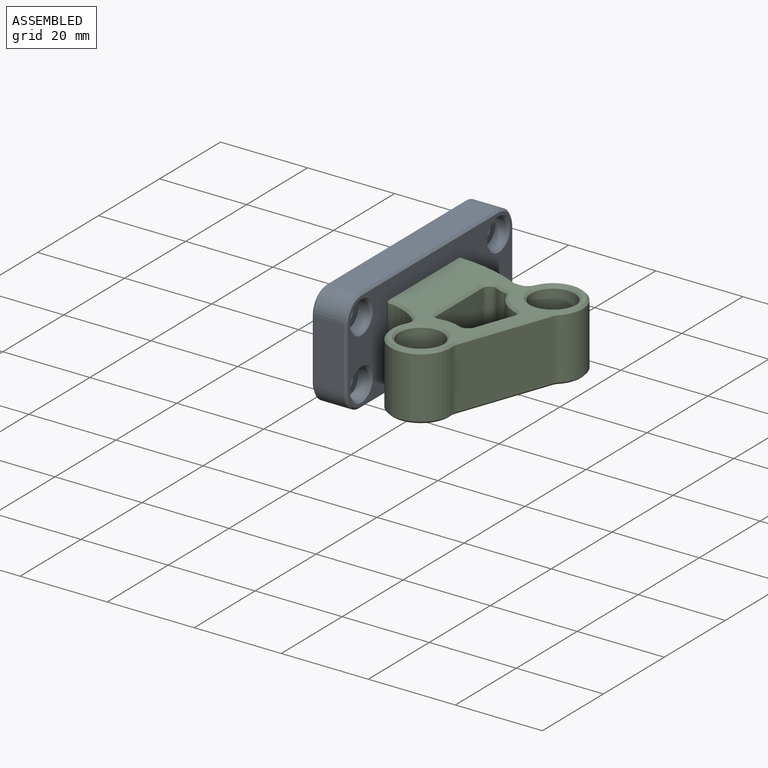
[diagram: assembled view]
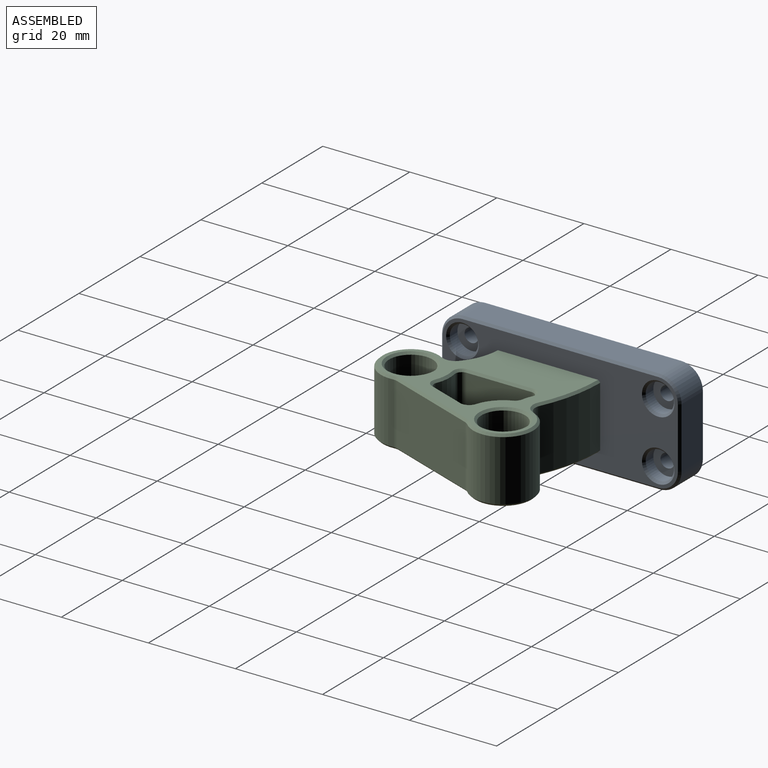
[diagram: assembled view, second angle]
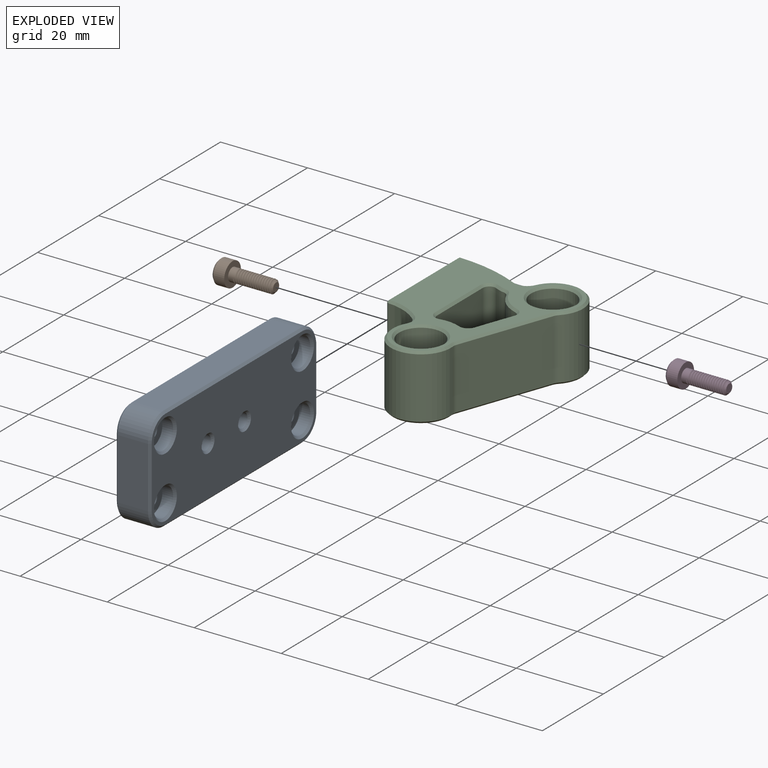
[diagram: exploded view]
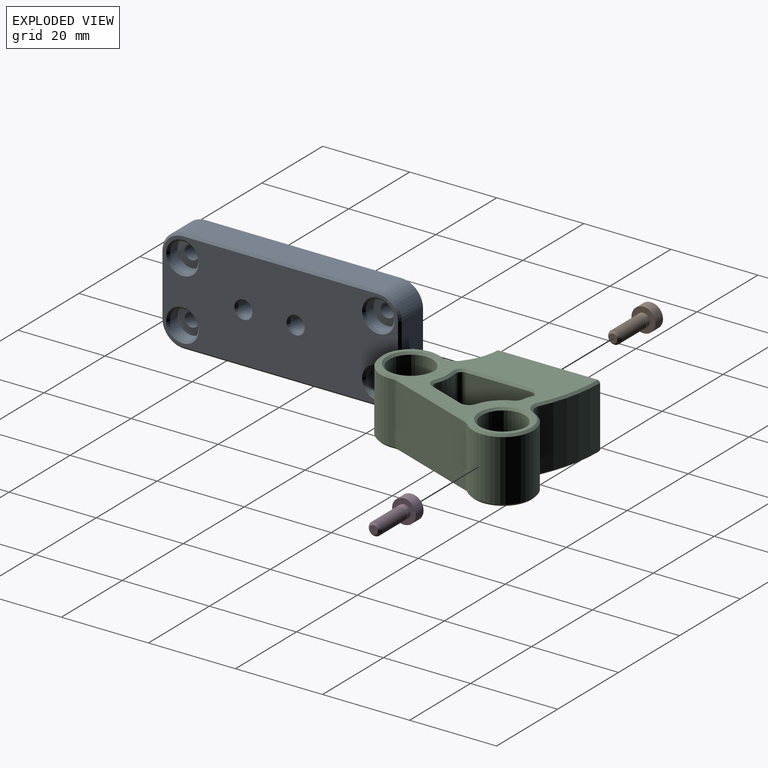
[diagram: exploded view, second angle]
ASSEMBLY  parts=4 mates=4
PART A: 56 faces, bbox 8x55x24 mm
  f0: plane 45x7mm, normal (0,0,1), area 315mm2, adj f24,f27,f32,f46
  f1: plane 14x7mm, normal (0,1,0), area 98mm2, adj f24,f25,f28,f42
  f2: plane 45x7mm, normal (0,0,-1), area 315mm2, adj f25,f26,f31,f45
  f3: plane 14x7mm, normal (0,-1,0), area 98mm2, adj f26,f27,f35,f49
  f4: plane 54x23mm, normal (-1,0,0), area 1080.8mm2, adj f42,f43,f44,f45,f46,f47,f48,f49
  f5: plane 54x23mm, normal (1,0,0), area 1020.2mm2, adj f28,f29,f30,f31,f32,f33,f34,f35
  f6: cylinder r=1.6mm len=4.5mm, axis (-1,0,0), area 45.2mm2, adj f7,f40
  f7: plane 6.5x6.5mm, normal (-1,0,0), area 25.1mm2, adj f6,f8
  f8: cylinder r=3.25mm len=6.5mm, axis (-1,0,0), area 51.1mm2, adj f7,f54
  f9: cylinder r=1.6mm len=4.5mm, axis (-1,0,0), area 45.2mm2, adj f10,f41
  f10: plane 6.5x6.5mm, normal (-1,0,0), area 25.1mm2, adj f9,f11
  f11: cylinder r=3.25mm len=6.5mm, axis (-1,0,0), area 51.1mm2, adj f10,f55
  f12: cylinder r=1.6mm len=4.5mm, axis (1,0,0), area 45.2mm2, adj f13,f53
  f13: plane 6.5x6.5mm, normal (1,0,0), area 25.1mm2, adj f12,f14
  f14: cylinder r=3.25mm len=6.5mm, axis (1,0,0), area 51.1mm2, adj f13,f39
  f15: cylinder r=1.6mm len=4.5mm, axis (1,0,0), area 45.2mm2, adj f16,f52
  f16: plane 6.5x6.5mm, normal (1,0,0), area 25.1mm2, adj f15,f17
  f17: cylinder r=3.25mm len=6.5mm, axis (1,0,0), area 51.1mm2, adj f16,f38
  f18: cylinder r=1.6mm len=4.5mm, axis (1,0,0), area 45.2mm2, adj f19,f51
  f19: plane 6.5x6.5mm, normal (1,0,0), area 25.1mm2, adj f18,f20
  f20: cylinder r=3.25mm len=6.5mm, axis (1,0,0), area 51.1mm2, adj f19,f37
  f21: cylinder r=1.6mm len=4.5mm, axis (1,0,0), area 45.2mm2, adj f22,f50
  f22: plane 6.5x6.5mm, normal (1,0,0), area 25.1mm2, adj f21,f23
  f23: cylinder r=3.25mm len=6.5mm, axis (1,0,0), area 51.1mm2, adj f22,f36
  f24: cylinder r=5mm len=7mm, axis (-1,0,0), area 55mm2, adj f0,f1,f30,f44
  f25: cylinder r=5mm len=7mm, axis (-1,0,0), area 55mm2, adj f1,f2,f29,f43
  f26: cylinder r=5mm len=7mm, axis (-1,0,0), area 55mm2, adj f2,f3,f33,f47
  f27: cylinder r=5mm len=7mm, axis (-1,0,0), area 55mm2, adj f0,f3,f34,f48
  f28: plane 14x0.5mm, normal (0.71,0.71,0), area 9.9mm2, adj f1,f5,f29,f30
  f29: cone r=4.5mm half-angle=45deg, axis (-1,0,0), area 5.3mm2, adj f5,f25,f28,f31
  f30: cone r=4.5mm half-angle=45deg, axis (-1,0,0), area 5.3mm2, adj f5,f24,f28,f32
  f31: plane 45x0.5mm, normal (0.71,0,-0.71), area 31.8mm2, adj f2,f5,f29,f33
  f32: plane 45x0.5mm, normal (0.71,0,0.71), area 31.8mm2, adj f0,f5,f30,f34
  f33: cone r=4.5mm half-angle=45deg, axis (-1,0,0), area 5.3mm2, adj f5,f26,f31,f35
  f34: cone r=4.5mm half-angle=45deg, axis (-1,0,0), area 5.3mm2, adj f5,f27,f32,f35
  f35: plane 14x0.5mm, normal (0.71,-0.71,0), area 9.9mm2, adj f3,f5,f33,f34
  f36: cone r=3.25mm half-angle=45deg, axis (1,0,0), area 15.6mm2, adj f5,f23
  f37: cone r=3.25mm half-angle=45deg, axis (1,0,0), area 15.6mm2, adj f5,f20
  f38: cone r=3.25mm half-angle=45deg, axis (1,0,0), area 15.6mm2, adj f5,f17
  f39: cone r=3.25mm half-angle=45deg, axis (1,0,0), area 15.6mm2, adj f5,f14
  f40: cone r=1.6mm half-angle=45deg, axis (1,0,0), area 8.2mm2, adj f5,f6
  f41: cone r=1.6mm half-angle=45deg, axis (1,0,0), area 8.2mm2, adj f5,f9
  f42: plane 14x0.5mm, normal (-0.71,0.71,0), area 9.9mm2, adj f1,f4,f43,f44
  f43: cone r=4.5mm half-angle=45deg, axis (1,0,0), area 5.3mm2, adj f4,f25,f42,f45
  f44: cone r=4.5mm half-angle=45deg, axis (1,0,0), area 5.3mm2, adj f4,f24,f42,f46
  f45: plane 45x0.5mm, normal (-0.71,0,-0.71), area 31.8mm2, adj f2,f4,f43,f47
  f46: plane 45x0.5mm, normal (-0.71,0,0.71), area 31.8mm2, adj f0,f4,f44,f48
  f47: cone r=4.5mm half-angle=45deg, axis (1,0,0), area 5.3mm2, adj f4,f26,f45,f49
  f48: cone r=4.5mm half-angle=45deg, axis (1,0,0), area 5.3mm2, adj f4,f27,f46,f49
  f49: plane 14x0.5mm, normal (-0.71,-0.71,0), area 9.9mm2, adj f3,f4,f47,f48
  f50: cone r=2.1mm half-angle=45deg, axis (-1,0,0), area 8.2mm2, adj f4,f21
  f51: cone r=2.1mm half-angle=45deg, axis (-1,0,0), area 8.2mm2, adj f4,f18
  f52: cone r=2.1mm half-angle=45deg, axis (-1,0,0), area 8.2mm2, adj f4,f15
  f53: cone r=2.1mm half-angle=45deg, axis (-1,0,0), area 8.2mm2, adj f4,f12
  f54: cone r=3.25mm half-angle=45deg, axis (-1,0,0), area 15.6mm2, adj f4,f8
  f55: cone r=3.25mm half-angle=45deg, axis (-1,0,0), area 15.6mm2, adj f4,f11
PART B: 33 faces, bbox 5.5x5.5x13.1 mm
  f0: cylinder r=2.75mm len=5.5mm, axis (0,0,-1), area 43.2mm2, adj f1,f32
  f1: plane 5.5x5.5mm, normal (0,0,1), area 16.7mm2, adj f0,f3
  f2: plane 4.5x4.5mm, normal (0,0,-1), area 10.5mm2, adj f25,f26,f27,f28,f29,f30,f32
  f3: cylinder r=1.5mm len=3mm, axis (0,0,-1), area 13.2mm2, adj f1,f17,f22,f23,f24
  f4: cylinder r=1.5mm len=3mm, axis (0,0,-1), area 1.9mm2, adj f5,f18,f23,f24
  f5: cylinder r=1.5mm len=3mm, axis (0,0,-1), area 1.9mm2, adj f4,f6,f23,f24
  f6: cylinder r=1.5mm len=3mm, axis (0,0,-1), area 1.9mm2, adj f5,f7,f23,f24
  f7: cylinder r=1.5mm len=3mm, axis (0,0,-1), area 1.9mm2, adj f6,f8,f23,f24
  f8: cylinder r=1.5mm len=3mm, axis (0,0,-1), area 1.9mm2, adj f7,f9,f23,f24
  f9: cylinder r=1.5mm len=3mm, axis (0,0,-1), area 1.9mm2, adj f8,f10,f23,f24
  f10: cylinder r=1.5mm len=3mm, axis (0,0,-1), area 1.9mm2, adj f9,f11,f23,f24
  f11: cylinder r=1.5mm len=3mm, axis (0,0,-1), area 1.9mm2, adj f10,f12,f23,f24
  f12: cylinder r=1.5mm len=3mm, axis (0,0,-1), area 1.9mm2, adj f11,f13,f23,f24
  f13: cylinder r=1.5mm len=3mm, axis (0,0,-1), area 1.9mm2, adj f12,f14,f23,f24
  f14: cylinder r=1.5mm len=3mm, axis (0,0,-1), area 1.9mm2, adj f13,f15,f23,f24
  f15: cylinder r=1.5mm len=3mm, axis (0,0,-1), area 1.9mm2, adj f14,f16,f23,f24
  f16: cylinder r=1.5mm len=3mm, axis (0,0,-1), area 1.9mm2, adj f15,f17,f23,f24
  f17: cylinder r=1.5mm len=3mm, axis (0,0,-1), area 1.9mm2, adj f3,f16,f23,f24
  f18: cylinder r=1.5mm len=2.59mm, axis (0,0,-1), area 0.3mm2, adj f4,f20,f21,f23
  f19: plane 2x2mm, normal (0,0,1), area 3.1mm2, adj f20
  f20: cone r=1mm half-angle=45deg, axis (0,0,-1), area 3.9mm2, adj f18,f19,f21,f23
  f21: cone r=1mm half-angle=45deg, axis (0,0,-1), area 0.5mm2, adj f18,f20,f24
  f22: plane 0.36x0.31mm, normal (-1,0,0), area 0.1mm2, adj f3,f23,f24
  f23: bspline ~8.79x3.46mm, area 44.9mm2, adj f3,f4,f5,f6,f7,f8,f9,f10
  f24: bspline ~8.79x3.46mm, area 46.1mm2, adj f3,f4,f5,f6,f7,f8,f9,f10
  f25: plane 2.5x1.25mm, normal (-0.5,0.87,0), area 3.6mm2, adj f2,f26,f30,f31
  f26: plane 2.5x1.25mm, normal (0.5,0.87,0), area 3.6mm2, adj f2,f25,f27,f31
  f27: plane 2.5x1.44mm, normal (1,0,0), area 3.6mm2, adj f2,f26,f28,f31
  f28: plane 2.5x1.25mm, normal (0.5,-0.87,0), area 3.6mm2, adj f2,f27,f29,f31
  f29: plane 2.5x1.25mm, normal (-0.5,-0.87,0), area 3.6mm2, adj f2,f28,f30,f31
  f30: plane 2.5x1.44mm, normal (-1,0,0), area 3.6mm2, adj f2,f25,f29,f31
  f31: plane 2.89x2.5mm, normal (0,0,-1), area 5.4mm2, adj f25,f26,f27,f28,f29,f30
  f32: cone r=2.75mm half-angle=45deg, axis (0,0,1), area 11.1mm2, adj f0,f2
PART C: 89 faces, bbox 32x42.3x15 mm
  f0: plane 41.3x31.01mm, normal (0,0,1), area 450.2mm2, adj f37,f39,f40,f43,f44,f47,f48,f52
  f1: plane 41.3x31.01mm, normal (0,0,-1), area 450.2mm2, adj f38,f41,f42,f45,f46,f50,f51,f55
  f2: cylinder r=2.5mm len=14mm, axis (0,0,-1), area 55.5mm2, adj f3,f9,f52,f55
  f3: cylinder r=36.56mm len=14.97mm, axis (0,0,-1), area 216.7mm2, adj f2,f56,f59,f62
  f4: plane 23.01x14mm, normal (-1,0,0), area 312.3mm2, adj f13,f15,f49,f57,f58,f62
  f5: cylinder r=12.56mm len=14mm, axis (0,0,-1), area 117.8mm2, adj f6,f48,f49,f50
  f6: cylinder r=2.5mm len=14mm, axis (0,0,-1), area 48.1mm2, adj f5,f7,f44,f45
  f7: cylinder r=6.9mm len=14mm, axis (0,0,-1), area 361.8mm2, adj f6,f10,f40,f41
  f8: plane 20.96x14mm, normal (0.94,-0.34,0), area 312.2mm2, adj f10,f11,f39,f42
  f9: cylinder r=6.9mm len=14mm, axis (0,0,-1), area 339.1mm2, adj f2,f11,f47,f51
  f10: cylinder r=2.5mm len=14mm, axis (0,0,-1), area 15.4mm2, adj f7,f8,f37,f38
  f11: cylinder r=2.5mm len=14mm, axis (0,0,-1), area 15.4mm2, adj f8,f9,f43,f46
  f12: cone r=0mm half-angle=59deg, axis (-1,0,0), area 5.7mm2, adj f13
  f13: cylinder r=1.25mm len=6.5mm, axis (-1,0,0), area 51.1mm2, adj f4,f12
  f14: cone r=0mm half-angle=59deg, axis (-1,0,0), area 5.7mm2, adj f15
  f15: cylinder r=1.25mm len=6.5mm, axis (-1,0,0), area 51.1mm2, adj f4,f14
  f16: cylinder r=4.05mm len=8.1mm, axis (0,0,1), area 127.2mm2, adj f17,f19
  f17: plane 10x10mm, normal (0,0,1), area 27mm2, adj f16,f18
  f18: cylinder r=5mm len=10mm, axis (0,0,1), area 141.4mm2, adj f17,f88
  f19: plane 10x10mm, normal (0,0,-1), area 27mm2, adj f16,f20
  f20: cylinder r=5mm len=10mm, axis (0,0,-1), area 141.4mm2, adj f19,f75
  f21: cylinder r=4.05mm len=8.1mm, axis (0,0,1), area 127.2mm2, adj f22,f24
  f22: plane 10x10mm, normal (0,0,1), area 27mm2, adj f21,f23
  f23: cylinder r=5mm len=10mm, axis (0,0,1), area 141.4mm2, adj f22,f87
  f24: plane 10x10mm, normal (0,0,-1), area 27mm2, adj f21,f25
  f25: cylinder r=5mm len=10mm, axis (0,0,-1), area 141.4mm2, adj f24,f74
  f26: cylinder r=32.56mm len=14mm, axis (0,0,1), area 6.5mm2, adj f31,f32,f71,f84
  f27: plane 14.98x14mm, normal (1,0,0), area 209.7mm2, adj f32,f33,f67,f80
  f28: cylinder r=9mm len=14mm, axis (0,0,1), area 74mm2, adj f33,f34,f63,f76
  f29: plane 14x8.79mm, normal (-0.94,0.34,0), area 130.9mm2, adj f34,f35,f66,f79
  f30: cylinder r=9mm len=14mm, axis (0,0,1), area 109.7mm2, adj f35,f36,f70,f83
  f31: cylinder r=6.5mm len=14mm, axis (0,0,1), area 27.2mm2, adj f26,f36,f73,f86
  f32: cylinder r=1.5mm len=14mm, axis (0,0,1), area 41.9mm2, adj f26,f27,f69,f82
  f33: cylinder r=1.5mm len=14mm, axis (0,0,1), area 37mm2, adj f27,f28,f65,f78
  f34: cylinder r=1.5mm len=14mm, axis (0,0,1), area 34mm2, adj f28,f29,f64,f77
  f35: cylinder r=1.5mm len=14mm, axis (0,0,1), area 34mm2, adj f29,f30,f68,f81
  f36: cylinder r=1.5mm len=14mm, axis (0,0,-1), area 21.7mm2, adj f30,f31,f72,f85
  f37: cone r=3mm half-angle=45deg, axis (0,0,1), area 0.9mm2, adj f0,f10,f39,f40
  f38: cone r=3mm half-angle=45deg, axis (0,0,-1), area 0.9mm2, adj f1,f10,f41,f42
  f39: plane 21.13x8.1mm, normal (0.66,-0.24,0.71), area 15.8mm2, adj f0,f8,f37,f43
  f40: cone r=6.4mm half-angle=45deg, axis (0,0,-1), area 17.6mm2, adj f0,f7,f37,f44
  f41: cone r=6.9mm half-angle=45deg, axis (0,0,1), area 17.6mm2, adj f1,f7,f38,f45
  f42: plane 21.13x8.1mm, normal (0.66,-0.24,-0.71), area 15.8mm2, adj f1,f8,f38,f46
  f43: cone r=3mm half-angle=45deg, axis (0,0,1), area 0.9mm2, adj f0,f11,f39,f47
  f44: cone r=2.5mm half-angle=45deg, axis (0,0,1), area 2.7mm2, adj f0,f6,f40,f48
  f45: cone r=3mm half-angle=45deg, axis (0,0,-1), area 2.7mm2, adj f1,f6,f41,f50
  f46: cone r=3mm half-angle=45deg, axis (0,0,-1), area 0.9mm2, adj f1,f11,f42,f51
  f47: cone r=6.4mm half-angle=45deg, axis (0,0,-1), area 16.5mm2, adj f0,f9,f43,f52
  f48: cone r=13.06mm half-angle=45deg, axis (0,0,1), area 6.1mm2, adj f0,f5,f44,f53
  f49: plane 14x0.5mm, normal (-0.72,-0.69,0), area 9.7mm2, adj f4,f5,f53,f54
  f50: cone r=12.56mm half-angle=45deg, axis (0,0,-1), area 6.1mm2, adj f1,f5,f45,f54
  f51: cone r=6.9mm half-angle=45deg, axis (0,0,1), area 16.5mm2, adj f1,f9,f46,f55
  f52: cone r=2.5mm half-angle=45deg, axis (0,0,1), area 3.1mm2, adj f0,f2,f47,f56
  f53: plane 0.5x0.5mm, normal (-0.58,-0.56,0.58), area 0.2mm2, adj f48,f49,f57
  f54: plane 0.5x0.5mm, normal (-0.58,-0.56,-0.58), area 0.2mm2, adj f49,f50,f58
  f55: cone r=3mm half-angle=45deg, axis (0,0,-1), area 3.1mm2, adj f1,f2,f51,f59
  f56: cone r=36.56mm half-angle=45deg, axis (0,0,-1), area 10.9mm2, adj f0,f3,f52,f60
  f57: plane 23.01x0.5mm, normal (-0.71,0,0.71), area 16.3mm2, adj f0,f4,f53,f60
  f58: plane 23.01x0.5mm, normal (-0.71,0,-0.71), area 16.3mm2, adj f1,f4,f54,f61
  f59: cone r=36.06mm half-angle=45deg, axis (0,0,1), area 10.9mm2, adj f1,f3,f55,f61
  f60: plane 0.51x0.5mm, normal (-0.57,0.58,0.57), area 0.2mm2, adj f56,f57,f62
  f61: plane 0.51x0.5mm, normal (-0.57,0.58,-0.57), area 0.2mm2, adj f58,f59,f62
  f62: plane 14x0.51mm, normal (-0.7,0.71,0), area 10mm2, adj f3,f4,f60,f61
  f63: cone r=9mm half-angle=45deg, axis (0,0,1), area 3.6mm2, adj f1,f28,f64,f65
  f64: cone r=2mm half-angle=45deg, axis (0,0,-1), area 2mm2, adj f1,f34,f63,f66
  f65: cone r=2mm half-angle=45deg, axis (0,0,-1), area 2.2mm2, adj f1,f33,f63,f67
  f66: plane 8.96x3.67mm, normal (-0.66,0.24,-0.71), area 6.6mm2, adj f1,f29,f64,f68
  f67: plane 14.98x0.5mm, normal (0.71,0,-0.71), area 10.6mm2, adj f1,f27,f65,f69
  f68: cone r=2mm half-angle=45deg, axis (0,0,-1), area 2mm2, adj f1,f35,f66,f70
  f69: cone r=2mm half-angle=45deg, axis (0,0,-1), area 2.5mm2, adj f1,f32,f67,f71
  f70: cone r=9mm half-angle=45deg, axis (0,0,1), area 5.4mm2, adj f1,f30,f68,f72
  f71: cone r=32.56mm half-angle=45deg, axis (0,0,-1), area 0.3mm2, adj f1,f26,f69,f73
  f72: cone r=2mm half-angle=45deg, axis (0,0,-1), area 1.3mm2, adj f1,f36,f70,f73
  f73: cone r=6.5mm half-angle=45deg, axis (0,0,1), area 1.3mm2, adj f1,f31,f71,f72
  f74: cone r=5mm half-angle=45deg, axis (0,0,-1), area 23.3mm2, adj f1,f25
  f75: cone r=5mm half-angle=45deg, axis (0,0,-1), area 23.3mm2, adj f1,f20
  f76: cone r=8.5mm half-angle=45deg, axis (0,0,-1), area 3.6mm2, adj f0,f28,f77,f78
  f77: cone r=2mm half-angle=45deg, axis (0,0,1), area 2mm2, adj f0,f34,f76,f79
  f78: cone r=2mm half-angle=45deg, axis (0,0,1), area 2.2mm2, adj f0,f33,f76,f80
  f79: plane 8.96x3.67mm, normal (-0.66,0.24,0.71), area 6.6mm2, adj f0,f29,f77,f81
  f80: plane 14.98x0.5mm, normal (0.71,0,0.71), area 10.6mm2, adj f0,f27,f78,f82
  f81: cone r=2mm half-angle=45deg, axis (0,0,1), area 2mm2, adj f0,f35,f79,f83
  f82: cone r=2mm half-angle=45deg, axis (0,0,1), area 2.5mm2, adj f0,f32,f80,f84
  f83: cone r=8.5mm half-angle=45deg, axis (0,0,-1), area 5.4mm2, adj f0,f30,f81,f85
  f84: cone r=33.06mm half-angle=45deg, axis (0,0,1), area 0.3mm2, adj f0,f26,f82,f86
  f85: cone r=2mm half-angle=45deg, axis (0,0,1), area 1.3mm2, adj f0,f36,f83,f86
  f86: cone r=6mm half-angle=45deg, axis (0,0,-1), area 1.3mm2, adj f0,f31,f84,f85
  f87: cone r=5mm half-angle=45deg, axis (0,0,1), area 23.3mm2, adj f0,f23
  f88: cone r=5mm half-angle=45deg, axis (0,0,1), area 23.3mm2, adj f0,f18
PART D: same geometry as B
PLACE A t=(0.16,-8.17,3.58)mm
PLACE B rot(axis=(0.71,0,0.71),180deg) t=(23.21,129.98,3.58)mm
PLACE C rot(axis=(0,0,1),0deg) t=(0.16,-8.17,3.58)mm
PLACE D rot(axis=(0.71,0,0.71),180deg) t=(23.21,141.98,3.58)mm
MATE fastened C.f12 <-> A.f6  axis (-1,0,0) through (31.21,141.98,3.58)mm
MATE fastened C.f14 <-> A.f9  axis (-1,0,0) through (31.21,129.98,3.58)mm
MATE fastened D.f0 <-> A.f6  axis (1,0,0) through (26.21,141.98,3.58)mm
MATE fastened B.f0 <-> A.f9  axis (1,0,0) through (26.21,129.98,3.58)mm
